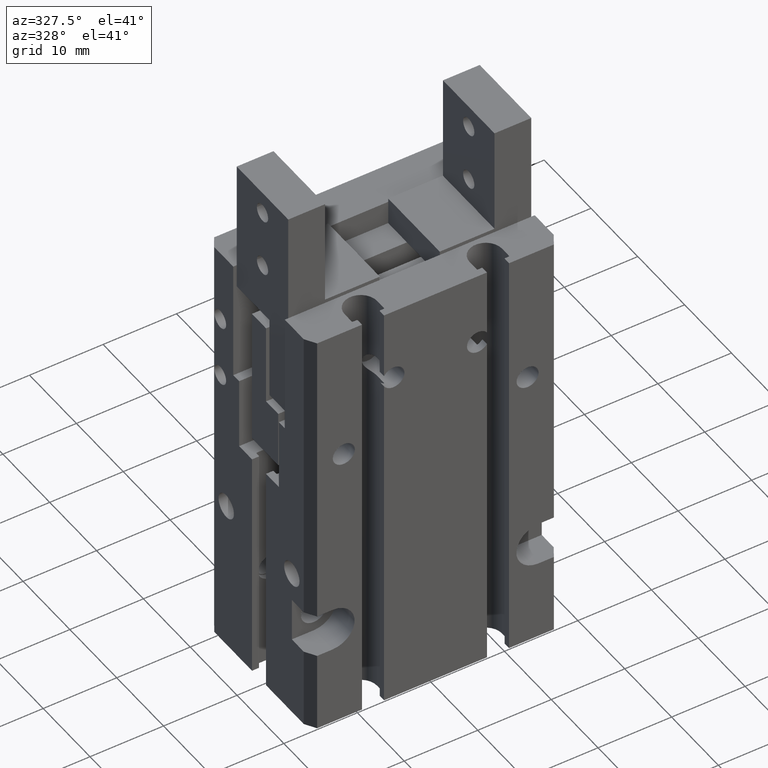
[diagram: clean part render]
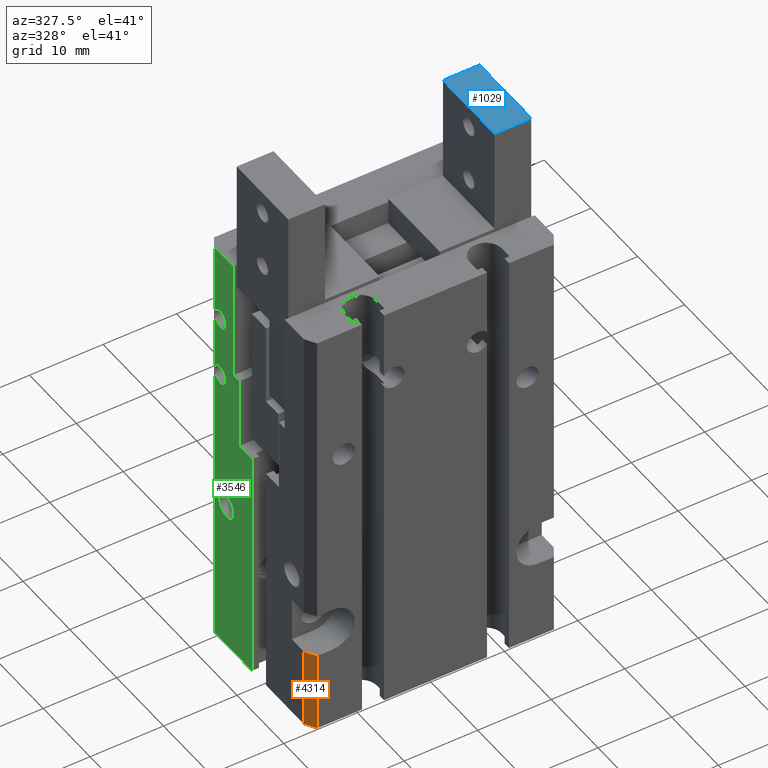
[diagram: same view with three faces highlighted in distinct colors, each labeled with its STEP entity id]
A machine part, auxiliary view with three faces highlighted in distinct colors.
Their STEP definitions:

[orange] entity #4314 — the highlighted planar face has unit normal (-0.8496, -0.5275, -0).
#3024=CARTESIAN_POINT('',(-16.1321387990885,-11.0308966109826,11.));
#3025=VERTEX_POINT('Vertex162',#3024);
#3032=CARTESIAN_POINT('',(-16.1321387990885,-11.0308966109826,
-4.10142544314117E-015));
#3033=VERTEX_POINT('Vertex163',#3032);
#3034=CARTESIAN_POINT('',(-16.1321387990885,-11.0308966109826,5.5));
#3035=DIRECTION('',(3.22973970800046E-016,-1.61486985400023E-016,-1.));
#3036=VECTOR('',#3035,1.);
#3037=LINE('nurbsCrv212',#3034,#3036);
#3038=EDGE_CURVE('Edge212',#3025,#3033,#3037,.T.);
#4284=CARTESIAN_POINT('',(-17.0308966109835,-9.58338319825445,11.));
#4285=VERTEX_POINT('Vertex229',#4284);
#4286=CARTESIAN_POINT('',(-16.581517705036,-10.3071399046185,11.));
#4287=DIRECTION('',(0.527490474049738,-0.849560945304563,0.));
#4288=VECTOR('',#4287,1.);
#4289=LINE('nurbsCrv307',#4286,#4288);
#4290=EDGE_CURVE('Edge307',#4285,#3025,#4289,.T.);
#4291=ORIENTED_EDGE('Edgeuse523',*,*,#4290,.F.);
#4292=CARTESIAN_POINT('',(-17.0308966109835,-9.58338319825445,
-4.00062400381978E-015));
#4293=VERTEX_POINT('Vertex230',#4292);
#4294=CARTESIAN_POINT('',(-17.0308966109835,-9.58338319825445,5.5));
#4295=DIRECTION('',(0.,1.61486985400023E-016,1.));
#4296=VECTOR('',#4295,1.);
#4297=LINE('nurbsCrv308',#4294,#4296);
#4298=EDGE_CURVE('Edge308',#4293,#4285,#4297,.T.);
#4299=ORIENTED_EDGE('Edgeuse524',*,*,#4298,.F.);
#4300=CARTESIAN_POINT('',(-16.581517705036,-10.3071399046185,
-4.05102472348048E-015));
#4301=DIRECTION('',(-0.527490474049739,0.849560945304562,5.9161431821583E-017)
);
#4302=VECTOR('',#4301,1.);
#4303=LINE('nurbsCrv309',#4300,#4302);
#4304=EDGE_CURVE('Edge309',#3033,#4293,#4303,.T.);
#4305=ORIENTED_EDGE('Edgeuse525',*,*,#4304,.F.);
#4306=ORIENTED_EDGE('Edgeuse526',*,*,#3038,.F.);
#4307=EDGE_LOOP('',(#4291,#4299,#4305,#4306));
#4308=FACE_OUTER_BOUND('',#4307,.T.);
#4309=CARTESIAN_POINT('',(-16.581517705036,-10.3071399046185,5.49999999999999)
);
#4310=DIRECTION('',(-0.849560945304562,-0.527490474049739,
-3.57177958353575E-016));
#4311=DIRECTION('',(-0.246105878288119,0.396371030169065,-0.884489628607791));
#4312=AXIS2_PLACEMENT_3D('',#4309,#4310,#4311);
#4313=PLANE('nurbsSrf100',#4312);
#4314=ADVANCED_FACE('Face100',(#4308),#4313,.T.);

[blue] entity #1029 — the highlighted planar face has unit normal (0, 0, 1).
#587=CARTESIAN_POINT('',(11.4968013890165,5.46910338901651,73.5));
#588=VERTEX_POINT('Vertex25',#587);
#603=CARTESIAN_POINT('',(11.4968013890165,-5.53089661098349,73.5));
#604=VERTEX_POINT('Vertex28',#603);
#611=CARTESIAN_POINT('',(11.4968013890165,-0.0308966109834881,73.5));
#612=DIRECTION('',(-3.39122669340048E-015,-1.,0.));
#613=VECTOR('',#612,1.);
#614=LINE('nurbsCrv38',#611,#613);
#615=EDGE_CURVE('Edge38',#588,#604,#614,.T.);
#675=CARTESIAN_POINT('',(16.4968013890165,5.4691033890165,73.5));
#676=VERTEX_POINT('Vertex33',#675);
#683=CARTESIAN_POINT('',(16.4968013890165,-5.5308966109835,73.5));
#684=VERTEX_POINT('Vertex34',#683);
#685=CARTESIAN_POINT('',(16.4968013890165,-0.0308966109835045,73.5));
#686=DIRECTION('',(-3.5527136788005E-015,-1.,0.));
#687=VECTOR('',#686,1.);
#688=LINE('nurbsCrv43',#685,#687);
#689=EDGE_CURVE('Edge43',#676,#684,#688,.T.);
#812=CARTESIAN_POINT('',(13.9968013890165,-5.5308966109835,73.5));
#813=DIRECTION('',(1.,-3.19744231092045E-015,0.));
#814=VECTOR('',#813,1.);
#815=LINE('nurbsCrv50',#812,#814);
#816=EDGE_CURVE('Edge50',#604,#684,#815,.T.);
#883=CARTESIAN_POINT('',(13.9968013890165,5.4691033890165,73.5));
#884=DIRECTION('',(1.,-3.37507799486047E-015,0.));
#885=VECTOR('',#884,1.);
#886=LINE('nurbsCrv56',#883,#885);
#887=EDGE_CURVE('Edge56',#588,#676,#886,.T.);
#1018=ORIENTED_EDGE('Edgeuse128',*,*,#689,.F.);
#1019=ORIENTED_EDGE('Edgeuse129',*,*,#887,.F.);
#1020=ORIENTED_EDGE('Edgeuse130',*,*,#615,.T.);
#1021=ORIENTED_EDGE('Edgeuse131',*,*,#816,.T.);
#1022=EDGE_LOOP('',(#1018,#1019,#1020,#1021));
#1023=FACE_OUTER_BOUND('',#1022,.T.);
#1024=CARTESIAN_POINT('',(13.9968013890165,-0.0308966109834956,73.5));
#1025=DIRECTION('',(0.,0.,1.));
#1026=DIRECTION('',(-2.93612700727314E-016,1.,0.));
#1027=AXIS2_PLACEMENT_3D('',#1024,#1025,#1026);
#1028=PLANE('nurbsSrf27',#1027);
#1029=ADVANCED_FACE('Face27',(#1023),#1028,.T.);

[green] entity #3546 — the highlighted planar face has unit normal (-1, 0, -0).
#2673=CARTESIAN_POINT('',(-17.0308966109835,6.9691033890166,22.65));
#2674=VERTEX_POINT('Vertex131',#2673);
#2675=CARTESIAN_POINT('',(-17.0308966109835,6.9691033890166,19.35));
#2676=VERTEX_POINT('Vertex343',#2675);
#2677=CARTESIAN_POINT('',(-17.0308966109835,6.9691033890166,21.));
#2678=DIRECTION('',(1.,0.,-2.15315980533364E-015));
#2679=DIRECTION('',(2.15315980533364E-015,-5.3828995133341E-016,1.));
#2680=AXIS2_PLACEMENT_3D('',#2677,#2678,#2679);
#2681=CIRCLE('nurbsCrv922',#2680,1.65);
#2682=EDGE_CURVE('Edge506',#2674,#2676,#2681,.T.);
#2684=CARTESIAN_POINT('',(-17.0308966109835,6.9691033890166,21.));
#2685=DIRECTION('',(1.,-2.15315980533364E-015,-2.15315980533364E-015));
#2686=DIRECTION('',(0.,1.07657990266682E-015,-1.));
#2687=AXIS2_PLACEMENT_3D('',#2684,#2685,#2686);
#2688=CIRCLE('nurbsCrv923',#2687,1.65);
#2689=EDGE_CURVE('Edge507',#2676,#2674,#2688,.T.);
#3431=CARTESIAN_POINT('',(-17.0308966109835,9.52158997628767,
-1.82348090249741E-015));
#3432=VERTEX_POINT('Vertex189',#3431);
#3433=CARTESIAN_POINT('',(-17.0308966109835,9.52158997628772,58.5));
#3434=VERTEX_POINT('Vertex188',#3433);
#3435=CARTESIAN_POINT('',(-17.0308966109835,9.52158997628769,29.25));
#3436=DIRECTION('',(3.03650741777821E-016,8.50222076977898E-016,1.));
#3437=VECTOR('',#3436,1.);
#3438=LINE('nurbsCrv247',#3435,#3437);
#3439=EDGE_CURVE('Edge247',#3432,#3434,#3438,.T.);
#3440=ORIENTED_EDGE('Edgeuse423',*,*,#3439,.F.);
#3441=CARTESIAN_POINT('',(-17.0308966109839,1.46910338901667,
-2.85856062847366E-015));
#3442=VERTEX_POINT('Vertex190',#3441);
#3443=CARTESIAN_POINT('',(-17.0308966109837,5.49534668265217,
-2.34102076548554E-015));
#3444=DIRECTION('',(5.64729100704505E-014,1.,1.28541626832693E-016));
#3445=VECTOR('',#3444,1.);
#3446=LINE('nurbsCrv248',#3443,#3445);
#3447=EDGE_CURVE('Edge248',#3442,#3432,#3446,.T.);
#3448=ORIENTED_EDGE('Edgeuse424',*,*,#3447,.F.);
#3449=CARTESIAN_POINT('',(-17.0308966109839,1.46910338901667,32.133316));
#3450=VERTEX_POINT('Vertex191',#3449);
#3451=CARTESIAN_POINT('',(-17.0308966109839,1.46910338901667,16.066658));
#3452=DIRECTION('',(-3.31685065942199E-016,0.,1.));
#3453=VECTOR('',#3452,1.);
#3454=LINE('nurbsCrv249',#3451,#3453);
#3455=EDGE_CURVE('Edge249',#3442,#3450,#3454,.T.);
#3456=ORIENTED_EDGE('Edgeuse425',*,*,#3455,.T.);
#3457=CARTESIAN_POINT('',(-17.0308966109835,4.2191033890166,32.133316));
#3458=VERTEX_POINT('Vertex192',#3457);
#3459=CARTESIAN_POINT('',(-17.0308966109837,2.84410338901664,32.133316));
#3460=DIRECTION('',(1.70530256582428E-013,1.,0.));
#3461=VECTOR('',#3460,1.);
#3462=LINE('nurbsCrv250',#3459,#3461);
#3463=EDGE_CURVE('Edge250',#3450,#3458,#3462,.T.);
#3464=ORIENTED_EDGE('Edgeuse426',*,*,#3463,.T.);
#3465=CARTESIAN_POINT('',(-17.0308966109835,4.2191033890166,42.));
#3466=VERTEX_POINT('Vertex193',#3465);
#3467=CARTESIAN_POINT('',(-17.0308966109835,4.2191033890166,37.066658));
#3468=DIRECTION('',(0.,-1.80035849876235E-016,1.));
#3469=VECTOR('',#3468,1.);
#3470=LINE('nurbsCrv251',#3467,#3469);
#3471=EDGE_CURVE('Edge251',#3458,#3466,#3470,.T.);
#3472=ORIENTED_EDGE('Edgeuse427',*,*,#3471,.T.);
#3473=CARTESIAN_POINT('',(-17.0308966109835,5.4691033890166,42.));
#3474=VERTEX_POINT('Vertex194',#3473);
#3475=CARTESIAN_POINT('',(-17.0308966109835,4.8441033890166,42.));
#3476=DIRECTION('',(2.8421709430404E-015,1.,0.));
#3477=VECTOR('',#3476,1.);
#3478=LINE('nurbsCrv252',#3475,#3477);
#3479=EDGE_CURVE('Edge252',#3466,#3474,#3478,.T.);
#3480=ORIENTED_EDGE('Edgeuse428',*,*,#3479,.T.);
#3481=CARTESIAN_POINT('',(-17.0308966109835,5.46910338901661,58.5));
#3482=VERTEX_POINT('Vertex195',#3481);
#3483=CARTESIAN_POINT('',(-17.0308966109835,5.4691033890166,50.25));
#3484=DIRECTION('',(0.,-2.69144975666704E-016,-1.));
#3485=VECTOR('',#3484,1.);
#3486=LINE('nurbsCrv253',#3483,#3485);
#3487=EDGE_CURVE('Edge253',#3482,#3474,#3486,.T.);
#3488=ORIENTED_EDGE('Edgeuse429',*,*,#3487,.F.);
#3489=CARTESIAN_POINT('',(-17.0308966109835,7.49534668265216,58.5));
#3490=DIRECTION('',(-2.63002499992937E-015,-1.,0.));
#3491=VECTOR('',#3490,1.);
#3492=LINE('nurbsCrv254',#3489,#3491);
#3493=EDGE_CURVE('Edge254',#3434,#3482,#3492,.T.);
#3494=ORIENTED_EDGE('Edgeuse430',*,*,#3493,.F.);
#3495=EDGE_LOOP('',(#3440,#3448,#3456,#3464,#3472,#3480,#3488,#3494));
#3496=FACE_OUTER_BOUND('',#3495,.T.);
#3497=CARTESIAN_POINT('',(-17.0308966109835,9.50000000000046,40.));
#3498=VERTEX_POINT('Vertex196',#3497);
#3499=CARTESIAN_POINT('',(-17.0308966109835,7.00000000000046,40.));
#3500=VERTEX_POINT('Vertex368',#3499);
#3501=CARTESIAN_POINT('',(-17.0308966109835,8.25000000000046,40.));
#3502=DIRECTION('',(1.,-2.8421709430404E-015,0.));
#3503=DIRECTION('',(0.,1.,0.));
#3504=AXIS2_PLACEMENT_3D('',#3501,#3502,#3503);
#3505=CIRCLE('nurbsCrv1618',#3504,1.25);
#3506=EDGE_CURVE('Edge568',#3498,#3500,#3505,.T.);
#3507=ORIENTED_EDGE('Edgeuse1137',*,*,#3506,.T.);
#3508=CARTESIAN_POINT('',(-17.0308966109835,8.25000000000045,40.));
#3509=DIRECTION('',(1.,-5.6843418860808E-015,-2.8421709430404E-015));
#3510=DIRECTION('',(0.,-1.,-5.68434188608081E-015));
#3511=AXIS2_PLACEMENT_3D('',#3508,#3509,#3510);
#3512=CIRCLE('nurbsCrv1619',#3511,1.25);
#3513=EDGE_CURVE('Edge569',#3500,#3498,#3512,.T.);
#3514=ORIENTED_EDGE('Edgeuse1139',*,*,#3513,.T.);
#3515=EDGE_LOOP('',(#3507,#3514));
#3516=FACE_BOUND('',#3515,.T.);
#3517=CARTESIAN_POINT('',(-17.0308966109835,9.50000000000046,48.5));
#3518=VERTEX_POINT('Vertex197',#3517);
#3519=CARTESIAN_POINT('',(-17.0308966109835,7.00000000000046,48.5));
#3520=VERTEX_POINT('Vertex370',#3519);
#3521=CARTESIAN_POINT('',(-17.0308966109835,8.25000000000046,48.5));
#3522=DIRECTION('',(1.,0.,0.));
#3523=DIRECTION('',(2.8421709430404E-015,1.,0.));
#3524=AXIS2_PLACEMENT_3D('',#3521,#3522,#3523);
#3525=CIRCLE('nurbsCrv1633',#3524,1.25);
#3526=EDGE_CURVE('Edge573',#3518,#3520,#3525,.T.);
#3527=ORIENTED_EDGE('Edgeuse1147',*,*,#3526,.T.);
#3528=CARTESIAN_POINT('',(-17.0308966109835,8.25000000000046,48.5));
#3529=DIRECTION('',(1.,0.,0.));
#3530=DIRECTION('',(0.,-1.,0.));
#3531=AXIS2_PLACEMENT_3D('',#3528,#3529,#3530);
#3532=CIRCLE('nurbsCrv1634',#3531,1.25);
#3533=EDGE_CURVE('Edge574',#3520,#3518,#3532,.T.);
#3534=ORIENTED_EDGE('Edgeuse1149',*,*,#3533,.T.);
#3535=EDGE_LOOP('',(#3527,#3534));
#3536=FACE_BOUND('',#3535,.T.);
#3537=ORIENTED_EDGE('Edgeuse1012',*,*,#2682,.T.);
#3538=ORIENTED_EDGE('Edgeuse1014',*,*,#2689,.T.);
#3539=EDGE_LOOP('',(#3537,#3538));
#3540=FACE_BOUND('',#3539,.T.);
#3541=CARTESIAN_POINT('',(-17.0308966109835,5.49534668265219,29.25));
#3542=DIRECTION('',(-1.,3.60977408120766E-015,-1.65627677333369E-016));
#3543=DIRECTION('',(-3.60977408120766E-015,-1.,3.40923107669612E-015));
#3544=AXIS2_PLACEMENT_3D('',#3541,#3542,#3543);
#3545=PLANE('nurbsSrf79',#3544);
#3546=ADVANCED_FACE('Face79',(#3496,#3516,#3536,#3540),#3545,.T.);